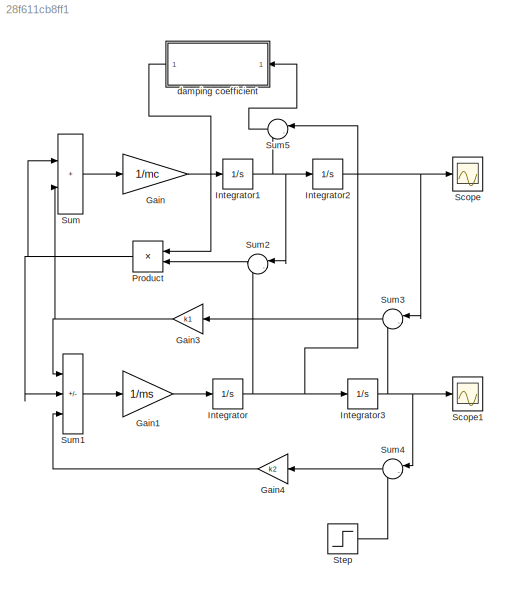
MODEL slx_28f611cb8ff1
KIND model
CONFIG AbsTol = auto
CONFIG EnableMultiTasking = off
CONFIG FixedStep = auto
CONFIG MaxStep = auto
CONFIG MinStep = auto
CONFIG RelTol = 1e-3
CONFIG SampleTimeConstraint = Unconstrained
CONFIG Solver = VariableStepAuto
CONFIG SolverName = VariableStepAuto
CONFIG StartTime = 0.0
CONFIG StopTime = 10.0
BLOCK [Gain] Gain
  Gain = 1/mc
BLOCK [Gain] Gain1
  Gain = 1/ms
BLOCK [Gain] Gain3
  Gain = k1
BLOCK [Gain] Gain4
  Gain = k2
BLOCK [Integrator] Integrator
  Ports = [1, 1]
BLOCK [Integrator] Integrator1
  Ports = [1, 1]
BLOCK [Integrator] Integrator2
  Ports = [1, 1]
BLOCK [Integrator] Integrator3
  Ports = [1, 1]
BLOCK [Product] Product
  Ports = [2, 1]
BLOCK [Scope] Scope
  Floating = off
  NumInputPorts = 1
  Ports = [1]
  ScopeSpecificationString = Simulink.scopes.TimeScopeBlockCfg('CurrentConfiguration', extmgr.ConfigurationSet(extmgr.Configuration('Core','General UI',true),extmgr.Configuration('Core','Source UI',true),extmgr.Configuration('Sources','WiredSimulink',true),extmgr.Configuration('Visuals','Time Domain',true,'SerializedDisplays',{struct('MinYLimReal','-6.45725','MaxYLimReal','58.11523','YLabelReal','','MinYLimMag','0.00000','Max...<+1361ch>
BLOCK [Scope] Scope1
  Floating = off
  NumInputPorts = 1
  Ports = [1]
  ScopeSpecificationString = Simulink.scopes.TimeScopeBlockCfg('CurrentConfiguration', extmgr.ConfigurationSet(extmgr.Configuration('Core','General UI',true),extmgr.Configuration('Core','Source UI',true),extmgr.Configuration('Sources','WiredSimulink',true,'DataLoggingVariableName','ScopeData1'),extmgr.Configuration('Visuals','Time Domain',true,'SerializedDisplays',{struct('MinYLimReal','-6.99811','MaxYLimReal','62.98297','YLa...<+1374ch>
BLOCK [Step] Step
  After = 30
  SampleTime = 0
BLOCK [Sum] Sum
  IconShape = rectangular
  Inputs = |++
  Ports = [2, 1]
BLOCK [Sum] Sum1
  IconShape = rectangular
  Inputs = |--+
  Ports = [3, 1]
BLOCK [Sum] Sum2
  Inputs = |-+
  Ports = [2, 1]
BLOCK [Sum] Sum3
  Inputs = |-+
  Ports = [2, 1]
BLOCK [Sum] Sum4
  Inputs = |-+
  Ports = [2, 1]
BLOCK [Sum] Sum5
  Inputs = |-+
  Ports = [2, 1]
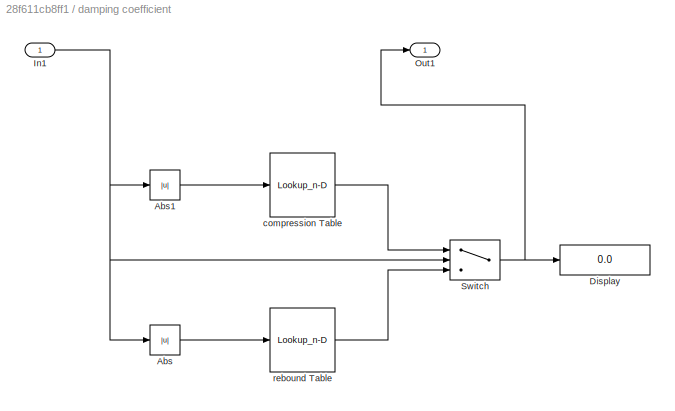
BLOCK [SubSystem] damping coefficient
  Ports = [1, 1]
  RequestExecContextInheritance = off
BLOCK [Abs] damping coefficient/Abs
  SaturateOnIntegerOverflow = off
BLOCK [Abs] damping coefficient/Abs1
  SaturateOnIntegerOverflow = off
BLOCK [Display] damping coefficient/Display
  Decimation = 1
  Ports = [1]
BLOCK [Inport] damping coefficient/In1
BLOCK [Outport] damping coefficient/Out1
BLOCK [Switch] damping coefficient/Switch
  Criteria = u2 > Threshold
  InputSameDT = off
  SaturateOnIntegerOverflow = off
BLOCK [Lookup_n-D] damping coefficient/compression Table
  BreakpointsForDimension1 = v
  InternalRulePriority = Speed
  NumberOfTableDimensions = 1
  Ports = [1, 1]
  RndMeth = Simplest
  Table = c_com
BLOCK [Lookup_n-D] damping coefficient/rebound Table
  BreakpointsForDimension1 = v
  InternalRulePriority = Speed
  NumberOfTableDimensions = 1
  Ports = [1, 1]
  RndMeth = Simplest
  Table = c_re
LINE Gain1:1 -> Integrator:1
NET Gain3:1 -> Sum1:1, Sum:2
LINE Gain4:1 -> Sum1:3
LINE Gain:1 -> Integrator1:1
NET Integrator1:1 -> Integrator2:1, Sum2:1, Sum5:2
NET Integrator2:1 -> Scope:1, Sum3:1
NET Integrator3:1 -> Scope1:1, Sum3:2, Sum4:1
NET Integrator:1 -> Integrator3:1, Sum2:2, Sum5:1
NET Product:1 -> Sum1:2, Sum:1
LINE Step:1 -> Sum4:2
LINE Sum1:1 -> Gain1:1
LINE Sum2:1 -> Product:2
LINE Sum3:1 -> Gain3:1
LINE Sum4:1 -> Gain4:1
LINE Sum5:1 -> damping coefficient:1
LINE Sum:1 -> Gain:1
LINE damping coefficient/Abs1:1 -> damping coefficient/compression Table:1
LINE damping coefficient/Abs:1 -> damping coefficient/rebound Table:1
NET damping coefficient/In1:1 -> damping coefficient/Abs1:1, damping coefficient/Abs:1, damping coefficient/Switch:2
NET damping coefficient/Switch:1 -> damping coefficient/Display:1, damping coefficient/Out1:1
LINE damping coefficient/compression Table:1 -> damping coefficient/Switch:1
LINE damping coefficient/rebound Table:1 -> damping coefficient/Switch:3
LINE damping coefficient:1 -> Product:1
note: NET lines group one-source signal fan-out (src -> all destinations, sorted); 1:1 wires keep LINE
